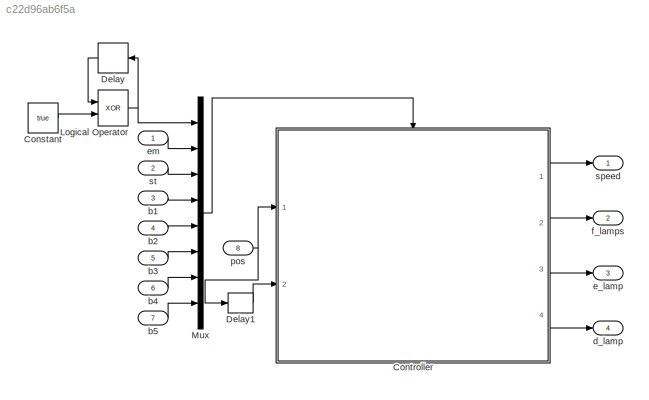
MODEL slx_c22d96ab6f5a
KIND model
CONFIG AbsTol = auto
CONFIG EnableMultiTasking = off
CONFIG FixedStep = 0.001
CONFIG MaxStep = auto
CONFIG MinStep = auto
CONFIG RelTol = 1e-3
CONFIG SampleTimeConstraint = Unconstrained
CONFIG Solver = FixedStepAuto
CONFIG SolverName = FixedStepAuto
CONFIG StartTime = 0.0
CONFIG StopTime = 100
BLOCK [Constant] Constant
  OutDataTypeStr = boolean
  Value = true
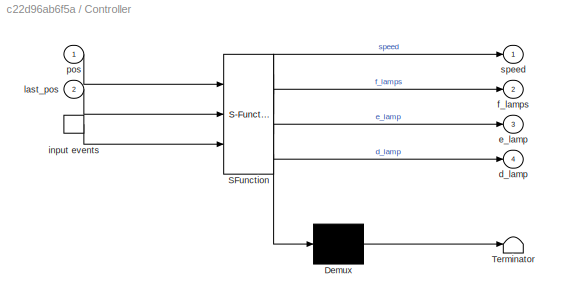
BLOCK [SubSystem] Controller
  ErrorFcn = Stateflow.Translate.translate
  PermitHierarchicalResolution = ExplicitOnly
  Ports = [2, 4, 0, 1]
  RequestExecContextInheritance = off
  SFBlockType = Chart
  TreatAsAtomicUnit = on
BLOCK [Demux] Controller/ Demux 
  Outputs = 1
  Ports = [1, 1]
BLOCK [S-Function] Controller/ SFunction 
  EnableBusSupport = on
  FunctionName = sf_sfun
  PortCounts = [3 5]
  Ports = [3, 5]
  SFcnIsStateOwnerBlock = off
  SFunctionDeploymentMode = off
  Tag = Stateflow S-Function 3
BLOCK [Terminator] Controller/ Terminator 
BLOCK [Outport] Controller/d_lamp
  Port = 4
BLOCK [Outport] Controller/e_lamp
  Port = 3
BLOCK [Outport] Controller/f_lamps
  Port = 2
BLOCK [TriggerPort] Controller/input events
  Ports = [0, 1]
  ShowOutputPort = on
  StatesWhenEnabling = held
  VariantControl = (inherit)
BLOCK [Inport] Controller/last_pos
  Port = 2
BLOCK [Inport] Controller/pos
BLOCK [Outport] Controller/speed
BLOCK [Delay] Delay
  DelayLength = 1
  InputPortMap = u0
  NameLocation = top
  Ports = [1, 1]
BLOCK [Delay] Delay1
  DelayLength = 1
  InitialCondition = 1
  InputPortMap = u0
  Ports = [1, 1]
BLOCK [Logic] Logical Operator
  AllPortsSameDT = off
  Operator = XOR
  OutDataTypeStr = boolean
  Ports = [2, 1]
BLOCK [Mux] Mux
  DisplayOption = bar
  Inputs = 8
  Ports = [8, 1]
BLOCK [Inport] b1
  Port = 3
BLOCK [Inport] b2
  Port = 4
BLOCK [Inport] b3
  Port = 5
BLOCK [Inport] b4
  Port = 6
BLOCK [Inport] b5
  Port = 7
BLOCK [Outport] d_lamp
  Port = 4
BLOCK [Outport] e_lamp
  Port = 3
BLOCK [Inport] em
BLOCK [Outport] f_lamps
  Port = 2
BLOCK [Inport] pos
  Port = 8
BLOCK [Outport] speed
BLOCK [Inport] st
  Port = 2
LINE Constant:1 -> Logical Operator:2
LINE Controller:1 -> speed:1
LINE Controller:2 -> f_lamps:1
LINE Controller:3 -> e_lamp:1
LINE Controller:4 -> d_lamp:1
LINE Delay1:1 -> Controller:2
LINE Delay:1 -> Logical Operator:1
NET Logical Operator:1 -> Delay:1, Mux:1
LINE Mux:1 -> Controller:trigger
LINE b1:1 -> Mux:4
LINE b2:1 -> Mux:5
LINE b3:1 -> Mux:6
LINE b4:1 -> Mux:7
LINE b5:1 -> Mux:8
LINE em:1 -> Mux:2
NET pos:1 -> Controller:1, Delay1:1
LINE st:1 -> Mux:3
note: NET lines group one-source signal fan-out (src -> all destinations, sorted); 1:1 wires keep LINE
CHART Controller states=20 transitions=28
  STATE_LABEL 'ControlModule'
  STATE_LABEL 'FloorButton'
  STATE_LABEL 'Buttons'
  STATE_LABEL 'B1 /{lamp_state(1); Button}'
  STATE_LABEL 'B5 /{lamp_state(5); \n       Button}'
  STATE_LABEL 'B2 /{lamp_state(2);\n        Button}'
  STATE_LABEL 'B3 /{lamp_state(3); Button}'
  STATE_LABEL 'B4 /{lamp_state(4);\n        Button}'
  STATE_LABEL 'Controller\n'
  STATE_LABEL 'Normal'
  STATE_LABEL 'Moving\n'
  STATE_LABEL 'FullSpeed'
  STATE_LABEL 'Break\ndu: speed = target - pos;'
  STATE_LABEL '[ab(pos - target) < 0.4]'
  STATE_LABEL 'Idle\nen: speed = 0;'
  STATE_LABEL 'Plan\nen:\nplan();\nspeed = direction * MAX_SPEED;'
  STATE_LABEL 'Doors\nen: \nf_lamps[target-1] = LAMP_HERE;\nd_lamp = 1;'
  STATE_LABEL 'DoorWait'
  STATE_LABEL '[sumlamps() > 0]'
  STATE_LABEL '[at_floor() != target]'
  STATE_LABEL 'Button'
  STATE_LABEL 'Button'
  STATE_LABEL '[target < 1]'
  STATE_LABEL '[d_lamp]'
  STATE_LABEL '[after(5, sec)] \n/{d_lamp = 0;\n  f_lamps[target-1] = LAMP_OFF;}'
  STATE_LABEL '[at_floor() == target && speed == 0]'
  STATE_LABEL '[at_floor() == target] \n/{speed = 0;}'
  STATE_LABEL '[after(0.5,sec)]'
  STATE_LABEL 'y = at_floor'
  STATE_LABEL 'SCRIPT:\n% calculate which floor the elevator is on\n% if elevator not at a floor, return -1\nfunction y = at_floor()\n    %y = -1;\n    %for k = 1:FLOORS\n    %    if abs(pos - k) < 0.01\n    %        y = k;\n    %        return;\n    %    end\n    nearest = round(pos);\n    if abs(pos - nearest) < 0.02\n        y = nearest;\n    else\n        y = -1;\n    end\nend\n'
  STATE_LABEL 'Emergency\nen:\ne_lamp = 1;\nspeed = 0;'
  STATE_LABEL 'WaitForRelease'
  STATE_LABEL 'Stabilize'
  STATE_LABEL '[after(5, sec)]'
  STATE_LABEL '[ab(pos - last_pos) > POS_FAULT]'
  STATE_LABEL '[ab(pos - last_pos) > POS_FAULT]'
  STATE_LABEL 'plan'
  STATE_LABEL 'SCRIPT:\n% set target of elevator, and update the floor state\n% since the lamps colour is based on floor state, why not use that?\nfunction plan()\n    old_target = target;    % used to set state of old target from Target to On\n    % if currently going up, prioritise the up direction\n    if direction > 0\n        if look_up(old_target)\n            % nothing up, look down\n            if look_down(old_t...<+2431ch>'
  STATE_LABEL 'Emergency[d_lamp == 1] \n/{e_lamp = 0;}'
  STATE_LABEL 'Emergency[d_lamp == 0] \n/{e_lamp = 0;}'
CHART  states=0 transitions=0
